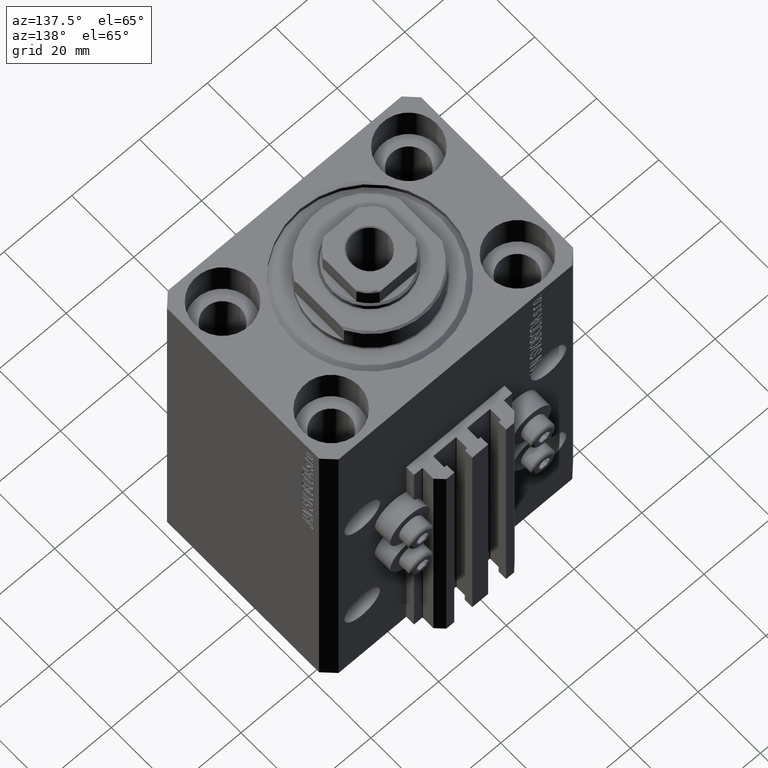
[diagram: clean part render]
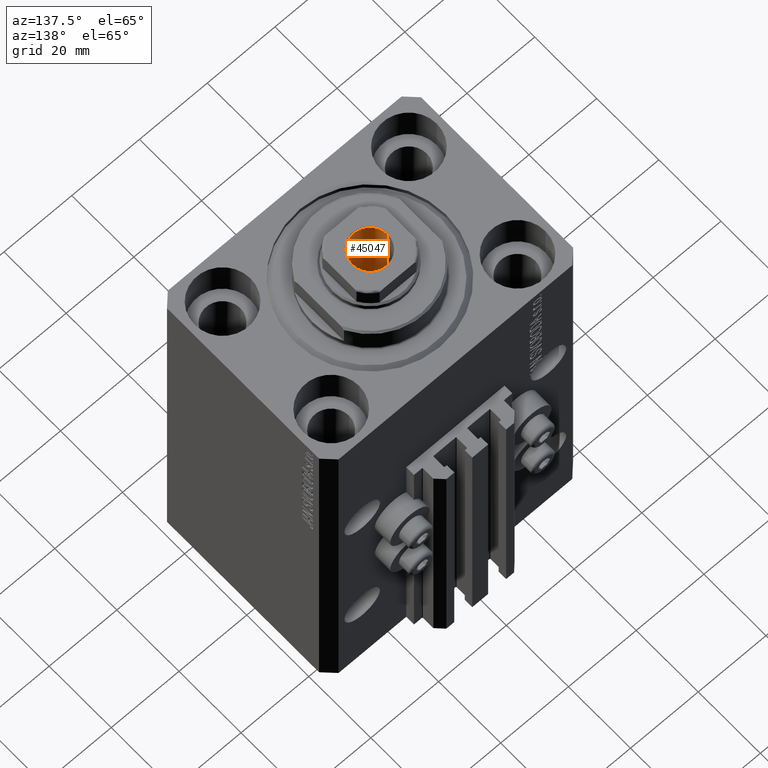
[diagram: same view with one face highlighted and labeled with its STEP entity id]
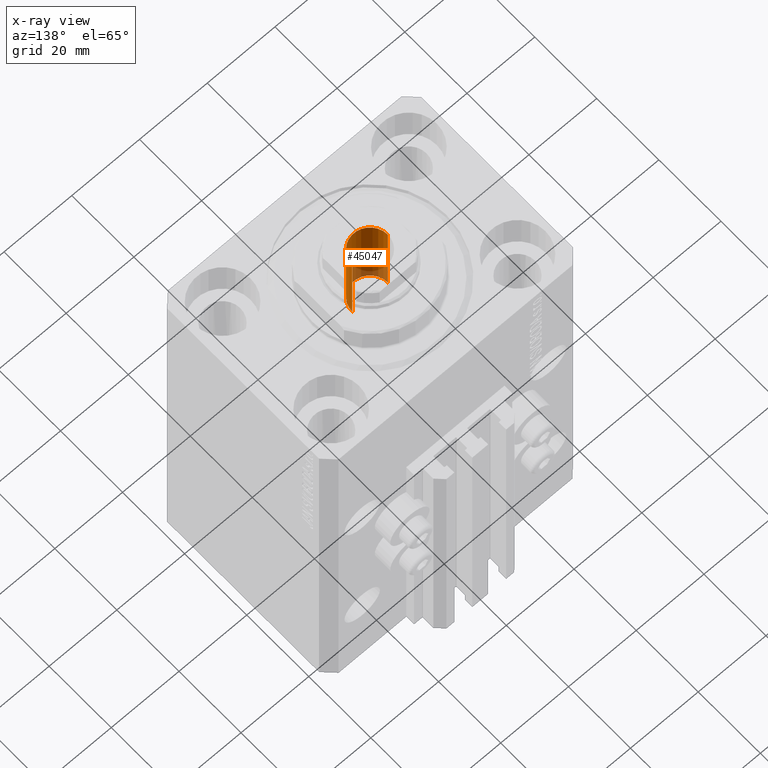
[diagram: x-ray of the same camera — body ghosted, the highlighted face saturated]
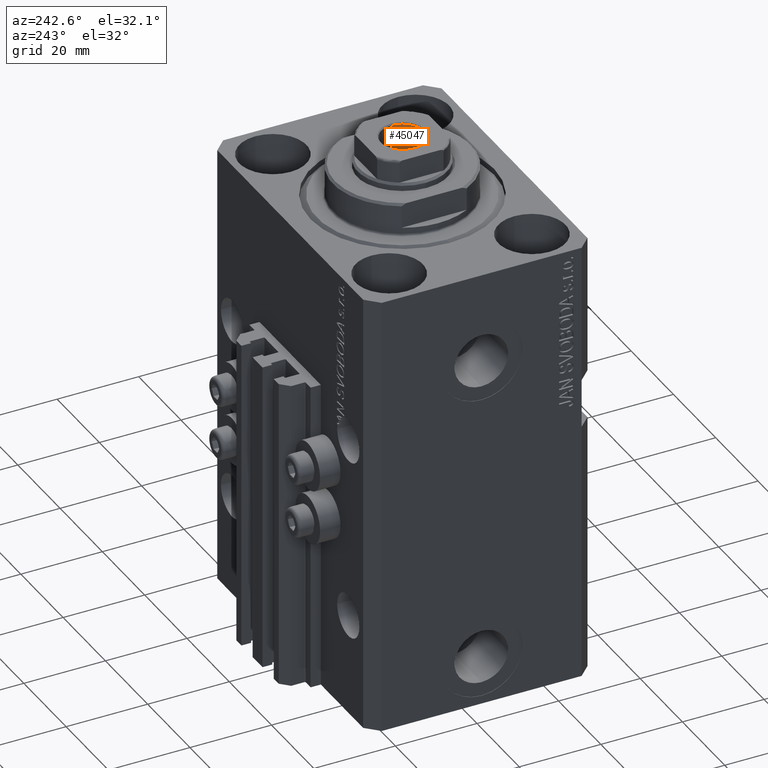
[diagram: same view with one face highlighted and labeled with its STEP entity id]
A machine part, auxiliary view. The second image highlights one B-rep face of the part: STEP entity #45047.
The next image is the same camera in x-ray: the body ghosted, the highlighted face saturated — about 15% of this face is hidden behind the body in this view.
A second angle (auxiliary view) of the same face is appended — the face is thin or edge-on in the first view.
In plain terms, the highlighted cylindrical surface (edge-blend (fillet) strip) has radius 5.25 mm, axis along (0, 0, 1).
Its self-contained STEP definition (entity closure, byte-faithful):
#62 = ORIENTED_EDGE ( 'NONE', *, *, #4358, .T. ) ;
#2841 = VECTOR ( 'NONE', #9975, 1000.000000000000000 ) ;
#4358 = EDGE_CURVE ( 'NONE', #27404, #43412, #35060, .T. ) ;
#5464 = DIRECTION ( 'NONE',  ( 0.000000000000000000, 0.000000000000000000, 1.000000000000000000 ) ) ;
#9060 = CARTESIAN_POINT ( 'NONE',  ( 0.000000000000000000, 0.000000000000000000, 114.8000000000000114 ) ) ;
#9169 = EDGE_CURVE ( 'NONE', #40421, #20641, #35337, .T. ) ;
#9975 = DIRECTION ( 'NONE',  ( -0.000000000000000000, -0.000000000000000000, 1.000000000000000000 ) ) ;
#11360 = CARTESIAN_POINT ( 'NONE',  ( 0.000000000000000000, 0.000000000000000000, 115.1000000000000085 ) ) ;
#13262 = DIRECTION ( 'NONE',  ( 1.000000000000000000, 0.000000000000000000, 0.000000000000000000 ) ) ;
#14711 = CYLINDRICAL_SURFACE ( 'NONE', #30433, 5.249999999999995559 ) ;
#16673 = CARTESIAN_POINT ( 'NONE',  ( 5.249999999999995559, 0.000000000000000000, 114.8000000000000114 ) ) ;
#16872 = DIRECTION ( 'NONE',  ( -0.000000000000000000, -0.000000000000000000, 1.000000000000000000 ) ) ;
#17109 = CARTESIAN_POINT ( 'NONE',  ( -5.249999999999995559, 6.429395695523600208E-16, 115.1000000000000085 ) ) ;
#19113 = DIRECTION ( 'NONE',  ( 1.000000000000000000, 0.000000000000000000, 0.000000000000000000 ) ) ;
#20552 = FACE_OUTER_BOUND ( 'NONE', #24232, .T. ) ;
#20641 = VERTEX_POINT ( 'NONE', #16673 ) ;
#21038 = CARTESIAN_POINT ( 'NONE',  ( -5.249999999999995559, 6.429395695523600208E-16, 114.8000000000000114 ) ) ;
#23333 = CIRCLE ( 'NONE', #27912, 5.249999999999994671 ) ;
#24232 = EDGE_LOOP ( 'NONE', ( #45564, #62, #27819, #28099 ) ) ;
#27404 = VERTEX_POINT ( 'NONE', #39213 ) ;
#27819 = ORIENTED_EDGE ( 'NONE', *, *, #39942, .T. ) ;
#27912 = AXIS2_PLACEMENT_3D ( 'NONE', #46299, #42216, #13262 ) ;
#27962 = DIRECTION ( 'NONE',  ( 1.000000000000000000, 0.000000000000000000, 0.000000000000000000 ) ) ;
#28099 = ORIENTED_EDGE ( 'NONE', *, *, #9169, .F. ) ;
#29298 = DIRECTION ( 'NONE',  ( -0.000000000000000000, -0.000000000000000000, 1.000000000000000000 ) ) ;
#30433 = AXIS2_PLACEMENT_3D ( 'NONE', #11360, #29298, #27962 ) ;
#35060 = LINE ( 'NONE', #17109, #43901 ) ;
#35337 = LINE ( 'NONE', #46594, #2841 ) ;
#38356 = EDGE_CURVE ( 'NONE', #27404, #40421, #23333, .T. ) ;
#39213 = CARTESIAN_POINT ( 'NONE',  ( -5.249999999999994671, 6.429395695523597250E-16, 90.10000000000000853 ) ) ;
#39942 = EDGE_CURVE ( 'NONE', #43412, #20641, #46349, .T. ) ;
#40421 = VERTEX_POINT ( 'NONE', #45286 ) ;
#40971 = AXIS2_PLACEMENT_3D ( 'NONE', #9060, #5464, #19113 ) ;
#42216 = DIRECTION ( 'NONE',  ( -0.000000000000000000, -0.000000000000000000, 1.000000000000000000 ) ) ;
#43412 = VERTEX_POINT ( 'NONE', #21038 ) ;
#43901 = VECTOR ( 'NONE', #16872, 1000.000000000000000 ) ;
#45047 = ADVANCED_FACE ( 'NONE', ( #20552 ), #14711, .F. ) ;
#45286 = CARTESIAN_POINT ( 'NONE',  ( 5.249999999999994671, 0.000000000000000000, 90.10000000000000853 ) ) ;
#45564 = ORIENTED_EDGE ( 'NONE', *, *, #38356, .F. ) ;
#46299 = CARTESIAN_POINT ( 'NONE',  ( 0.000000000000000000, 0.000000000000000000, 90.10000000000000853 ) ) ;
#46349 = CIRCLE ( 'NONE', #40971, 5.249999999999995559 ) ;
#46594 = CARTESIAN_POINT ( 'NONE',  ( 5.249999999999995559, 0.000000000000000000, 115.1000000000000085 ) ) ;